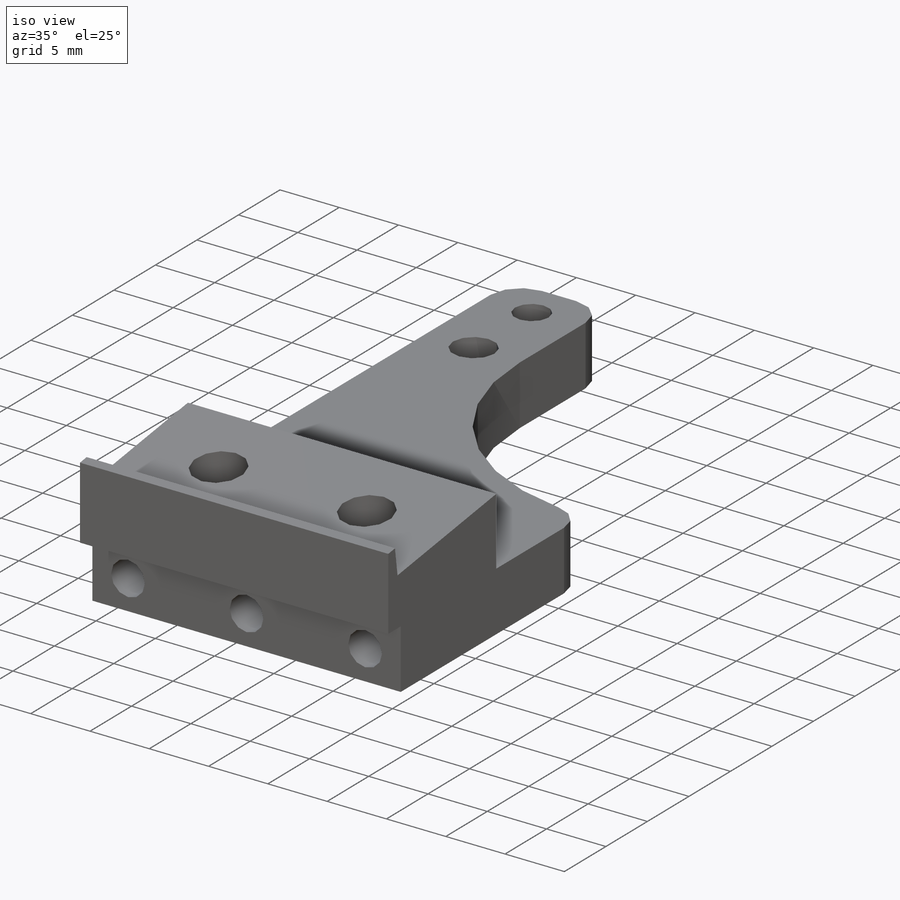
[diagram: iso view]
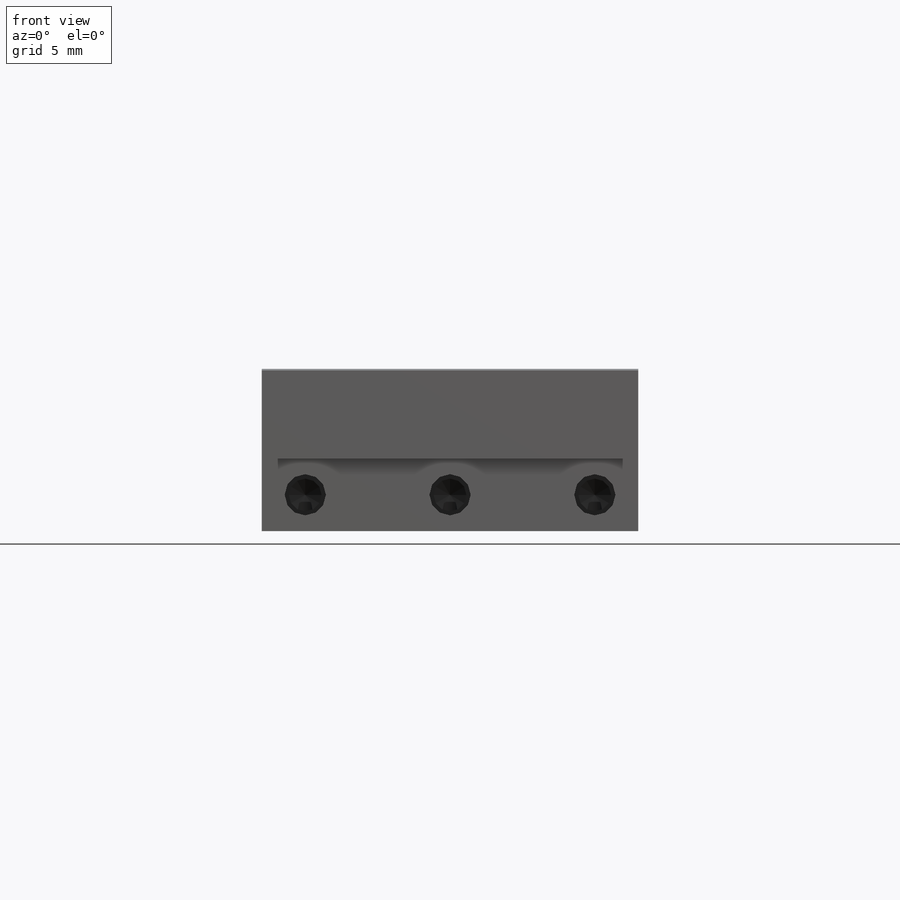
[diagram: front view]
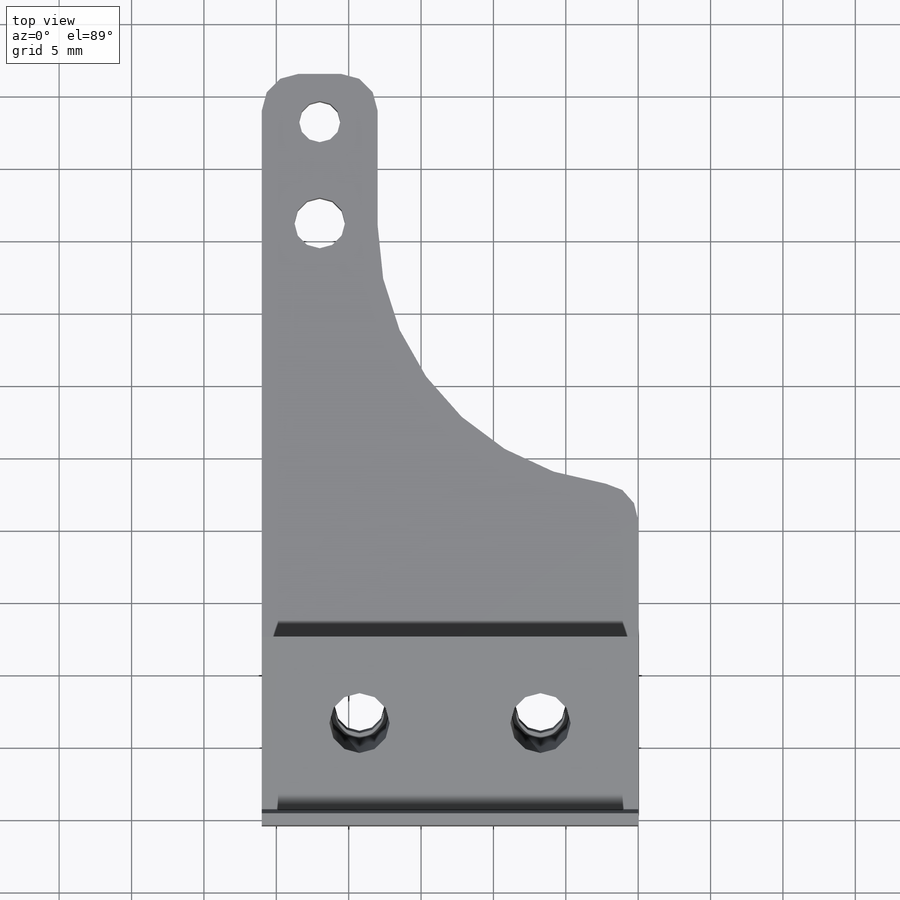
[diagram: top view]
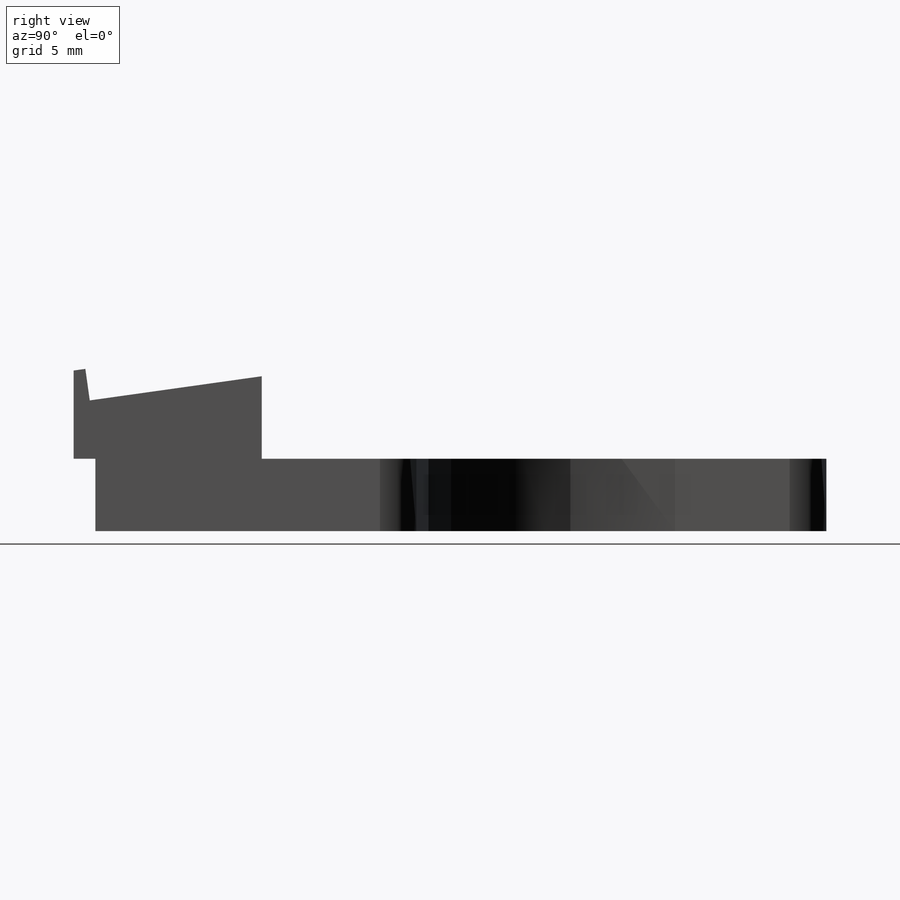
[diagram: right view]
SOLIDWORKS PART (.sldprt)
format: sldprt  version: not decoded by parser v0  size: 394,240 bytes
history: native  units: mm
features: sketch x13, cut_extrude x4, extrude x3, hole x3, fillet x2, material x1, plane x1 + 1 further entry (+13 scaffold rows collapsed)
feature tree (41):
  scaffold x13  (default folders/planes/origin — collapsed)
  material  "6061-T6 Al"
  "Origin"  ID=-1
  sketch  "Sketch1"  dims[D1=26.0mm D2=51.5mm]
  extrude  "Extrude1"  Depth=5mm
  sketch  "Sketch2"  dims[D1=28.3mm D2=18.0mm]
  cut_extrude  "Extrude2"  Depth=5mm
  fillet  "Fillet1"  Radius=2.54mm
  fillet  "Fillet2"  Radius=18mm
  sketch  "Sketch3"  dims[c1.D1=~5.524338mm c2.D1=8.0deg c2.D2=5.7mm c2.D3=12.5mm c2.D4=12.0mm c2.D5=2.2mm]
  extrude  "Extrude3"  [1 undecoded]
  sketch  "Sketch4"  dims[D1=5.0mm]
  cut_extrude  "Extrude4"  Depth=1mm
  plane  "Plane1"
  hole  "#4-40 Tapped Hole1"  Diameter=2.2606mm Depth=10.1346mm
  sketch  "3DSketch1"  dims[D1=4.0mm D2=47.2mm]
  sketch  "Sketch5"  dims[hole-wizard template sketch: 29 standard entries collapsed; hole parameters kept: c8.Tap Drill Depth=10.1346mm c8.Thread Major Dia.=2.8448mm c8.Thread Depth=8.2296mm c8.D5=~14.816244mm c8.Drill Angle=118.0deg]
  sketch  "Sketch6"  dims[D1=3.5mm D2=4.0mm D3=7.0mm]
  cut_extrude  "Extrude5"  [1 undecoded]
  hole  "#8-32 Tapped Hole1"  Diameter=3.4544mm Depth=10.7188mm
  sketch  "3DSketch2"  dims[D1=6.25mm D2=6.25mm D3=6.0mm]
  sketch  "Sketch7"  dims[hole-wizard template sketch: 29 standard entries collapsed; hole parameters kept: c8.Tap Drill Depth=10.7188mm c8.Thread Major Dia.=4.1656mm c8.Thread Depth=8.3312mm c8.D5=~14.816244mm c8.Drill Angle=118.0deg]
  hole  "#4-40 Tapped Hole2"  Diameter=2.2606mm Depth=8.89mm
  sketch  "3DSketch3"  dims[D1=10.0mm D2=10.0mm D3=2.5mm]
  sketch  "Sketch8"  dims[hole-wizard template sketch: 29 standard entries collapsed; hole parameters kept: c8.Tap Drill Depth=8.89mm c8.Thread Major Dia.=2.8448mm c8.Thread Depth=5.6896mm c8.D5=~14.816244mm c8.Drill Angle=118.0deg]
  sketch  "Sketch9"  dims[D1=1.0mm D2=1.0mm D3=1.0mm D4=10.0mm D5=10.0mm D6=8.89mm]
  cut_extrude  "Extrude6"  Depth=2.032mm
  sketch  "Sketch12"  dims[D1=0.5mm]
  extrude  "Boss-Extrude2"  [1 undecoded]
decode coverage: 22 of 25 modeling features carry decoded parameters; 1 rows unclassified (native names shown)
note: ~ marks probable driven/reference dimensions
note: 3 parameter values undecoded
summary: no parameter record found for 3 features
note: suppression state not decoded; provenance and decode notes live in map.json
